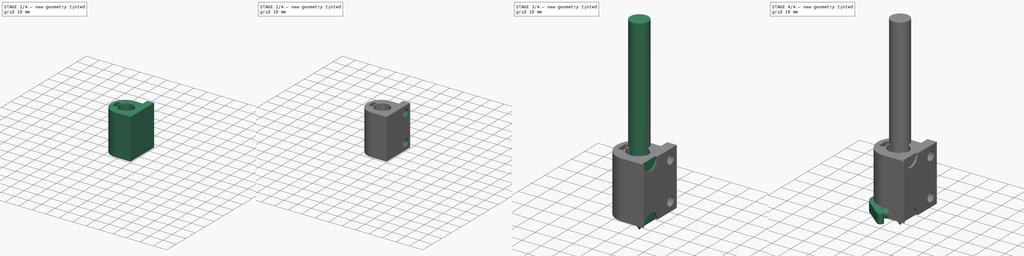
[diagram: build sequence overview — one tinted view per stage of 4, left to right]
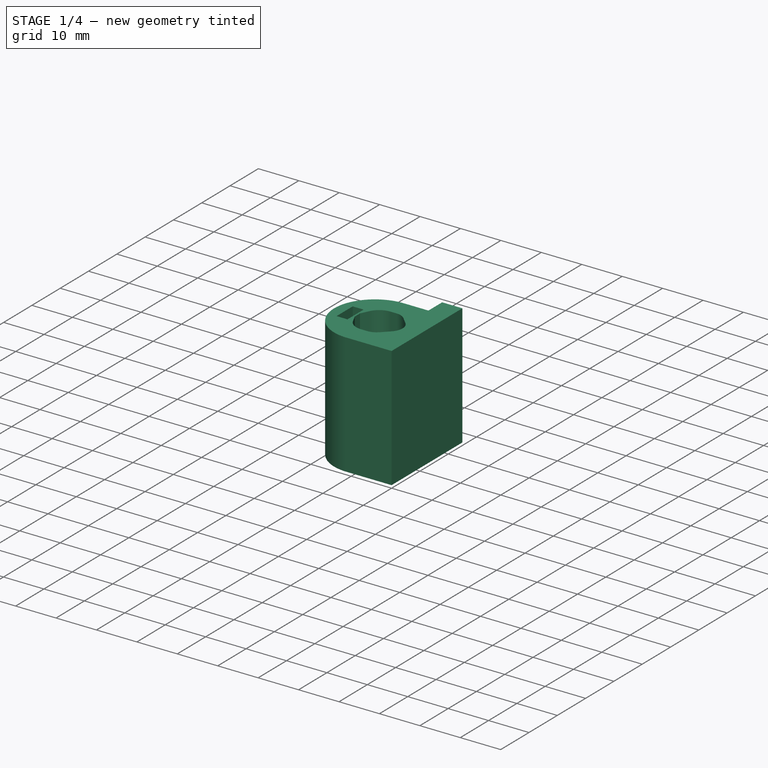
[diagram: stage 1 of 4 — iso view after this stage's code; geometry added in this stage tinted green]
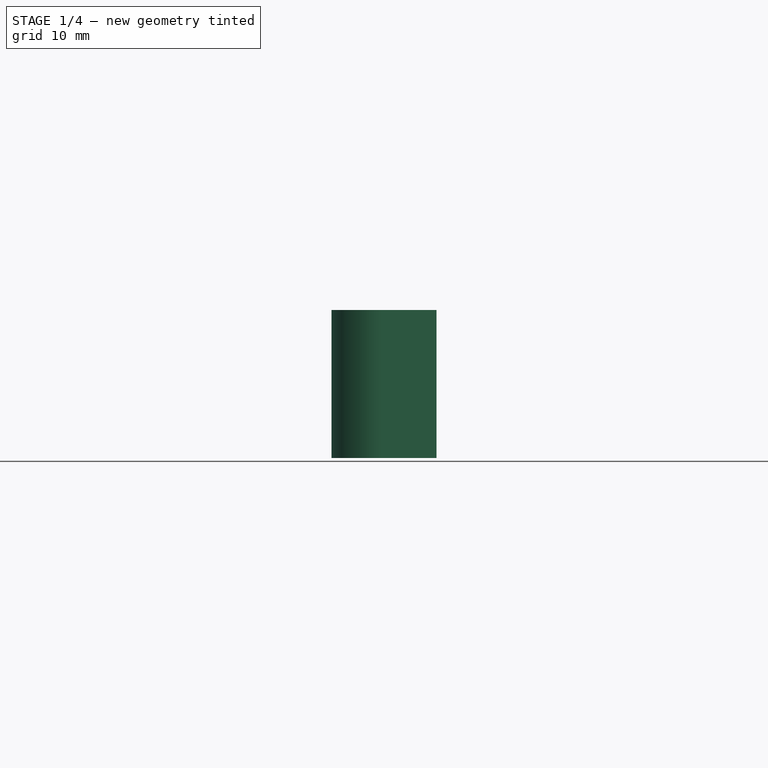
[diagram: stage 1 of 4 — front view after this stage's code; geometry added in this stage tinted green]
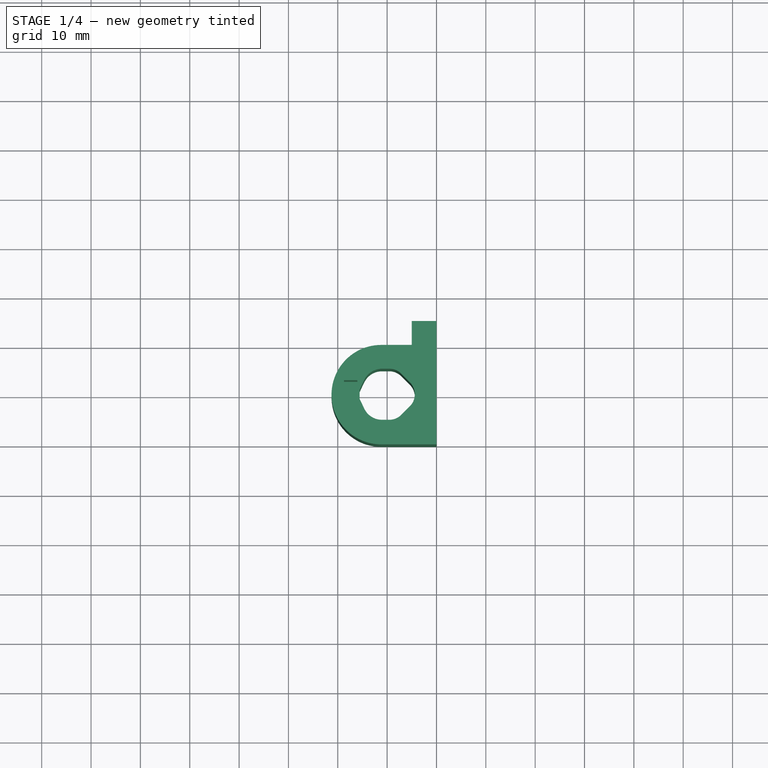
[diagram: stage 1 of 4 — top view after this stage's code; geometry added in this stage tinted green]
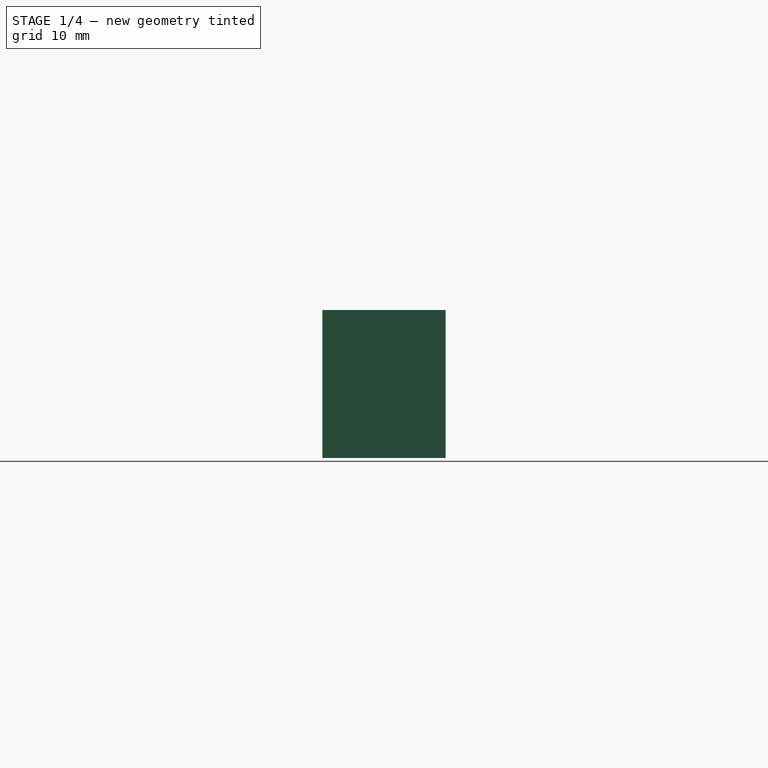
[diagram: stage 1 of 4 — right view after this stage's code; geometry added in this stage tinted green]
FCSTD DOCUMENT  (FreeCAD 0.21R33694 (Git))
Label: mount_for_pen_simpler
License: All rights reserved
LicenseURL: https://en.wikipedia.org/wiki/All_rights_reserved
objects: Sketcher::SketchObject×9, PartDesign::Pad×5, PartDesign::Body×3, PartDesign::Pocket×3, PartDesign::Hole×1
note: 30 computed .brp shape members not serialized (recipe doc carries the construction recipe); baked Part::Feature solids carry a one-line shape summary decoded from their .brp

FEATURE [Sketcher::SketchObject] Sketch  label="Sketch_de_base"
  FullyConstrained = false
  MapMode = 5
  Support = -> [XY_Plane]
  sketch-geometry (19):
    g0: LineSegment StartX=-5 StartY=25 StartZ=0 EndX=0 EndY=25 EndZ=0
    g1: LineSegment StartX=0 StartY=25 StartZ=0 EndX=0 EndY=0 EndZ=0
    g2: LineSegment StartX=0 StartY=0 StartZ=0 EndX=-11.1926 EndY=0 EndZ=0
    g3: ArcOfCircle CenterX=-11.1926 CenterY=10.0796 CenterZ=0 NormalX=0 NormalY=0 NormalZ=1 AngleXU=0 Radius=10.0796 StartAngle=1.5708 EndAngle=4.71239
    g4: LineSegment StartX=-11.1926 StartY=20.1591 StartZ=0 EndX=-5 EndY=20.1591 EndZ=0
    g5: LineSegment StartX=-5 StartY=20.1591 StartZ=0 EndX=-5 EndY=25 EndZ=0
    g6: LineSegment StartX=-7.14502 StartY=5.98354 StartZ=0 EndX=-5.39716 EndY=7.7314 EndZ=0
    g7: LineSegment StartX=-34.6802 StartY=10.1591 StartZ=0 EndX=10.4671 EndY=10.1591 EndZ=0
    g8: LineSegment StartX=-5.39716 StartY=12.5869 StartZ=0 EndX=-7.14502 EndY=14.3347 EndZ=0
    g9: LineSegment StartX=-11.0548 StartY=15.3297 StartZ=0 EndX=-9.54715 EndY=15.3297 EndZ=0
    g10: LineSegment StartX=-11.0548 StartY=4.98854 StartZ=0 EndX=-9.54715 EndY=4.98854 EndZ=0
    g11: LineSegment StartX=-14.6231 StartY=13.0895 StartZ=0 EndX=-15.5825 EndY=11.1011 EndZ=0
    g12: LineSegment StartX=-15.5825 StartY=11.1011 StartZ=0 EndX=-15.5825 EndY=9.21714 EndZ=0
    g13: LineSegment StartX=-15.5825 StartY=9.21714 StartZ=0 EndX=-14.6231 EndY=7.22879 EndZ=0
    g14: ArcOfCircle CenterX=-7.82489 CenterY=10.1591 CenterZ=0 NormalX=0 NormalY=0 NormalZ=1 AngleXU=0 Radius=3.43333 StartAngle=5.49779 EndAngle=7.06858
    g15: ArcOfCircle CenterX=-9.54715 CenterY=8.38566 CenterZ=0 NormalX=0 NormalY=0 NormalZ=1 AngleXU=0 Radius=3.39712 StartAngle=4.71239 EndAngle=5.49779
    g16: ArcOfCircle CenterX=-9.54715 CenterY=11.9326 CenterZ=0 NormalX=0 NormalY=0 NormalZ=1 AngleXU=0 Radius=3.39712 StartAngle=0.785398 EndAngle=1.5708
    g17: ArcOfCircle CenterX=-11.0548 CenterY=11.3677 CenterZ=0 NormalX=0 NormalY=0 NormalZ=1 AngleXU=0 Radius=3.962 StartAngle=1.5708 EndAngle=2.69204
    g18: ArcOfCircle CenterX=-11.0548 CenterY=8.95054 CenterZ=0 NormalX=0 NormalY=0 NormalZ=1 AngleXU=0 Radius=3.962 StartAngle=3.59115 EndAngle=4.71239
  constraints (39):
    c: Horizontal(g0)
    c: Coincident(g0,g1)
    c: Vertical(g1)
    c: Coincident(g1,g2)
    c: Horizontal(g2)
    c: Coincident(g5,g0)
    c: Coincident(g1,g-1)
    c: DistanceY(g1,g0) = 25
    c: Coincident(g3,g2)
    c: Coincident(g4,g5)
    c: Vertical(g5)
    c: Horizontal(g4)
    c: Coincident(g3,g4)
    c: DistanceX(g0,g0) = 5
    c: DistanceY(g1,g4) = 20.1591  'largeur_support'
    c: Angle(g6) = 0.785398
    c: Horizontal(g7)
    c: DistanceY(g7,g4) = 10
    c: Vertical(g3,g2)
    c: Angle(g3) = 3.14159
    c: Horizontal(g10)
    c: Coincident(g12,g11)
    c: Vertical(g12)
    c: Coincident(g13,g12)
    c: Tangent(g8,g14) = -1.5708
    c: Tangent(g6,g14) = -1.5708
    c: Tangent(g6,g15) = -1.5708
    c: Tangent(g10,g15) = -1.5708
    c: Tangent(g8,g16) = -1.5708
    c: Tangent(g9,g16) = 1.5708
    c: Tangent(g9,g17) = 1.5708
    c: Tangent(g11,g17) = -1.5708
    c: Tangent(g13,g18) = -1.5708
    c: Symmetric(g6,g8,g7)
    c: Vertical(g13,g11)
    c: Symmetric(g16,g15,g7)
    c: Symmetric(g17,g18,g7)
    c: Symmetric(g9,g10,g7)
    c: Coincident(g10,g18)
FEATURE [PartDesign::Pad] Pad
  Direction = (0,0,1)
  Length = 30
  Length2 = 10
  Profile = -> Sketch
  ReferenceAxis = -> Sketch [N_Axis]
  Type = 0
FEATURE [PartDesign::Body] Body002  label="crayon"
  Group = -> [Sketch006,Pad004,Sketch007,Pad005]
  Origin = -> Origin002
  Placement = pos=(3.4,-5.7,-19) rot=(0,0,1;0rad)
  Tip = -> Pad005
FEATURE [Sketcher::SketchObject] Sketch008  label="trou_ecrou"
  ExternalGeometry = -> [Pad]
  FullyConstrained = false
  MapMode = 5
  Placement = pos=(0,0,30) rot=(0,0,1;0rad)
  Support = -> [Pad]
  sketch-geometry (5):
    g0: GeomPoint X=-11.0548 Y=10.1591 Z=0
    g1: LineSegment StartX=-18.7322 StartY=13.0091 StartZ=0 EndX=-16.0322 EndY=13.0091 EndZ=0
    g2: LineSegment StartX=-16.0322 StartY=13.0091 StartZ=0 EndX=-16.0322 EndY=7.30913 EndZ=0
    g3: LineSegment StartX=-16.0322 StartY=7.30913 StartZ=0 EndX=-18.7322 EndY=7.30913 EndZ=0
    g4: LineSegment StartX=-18.7322 StartY=7.30913 StartZ=0 EndX=-18.7322 EndY=13.0091 EndZ=0
  constraints (12):
    c: Symmetric(g-3,g-4,g0)
    c: Coincident(g1,g2)
    c: Coincident(g2,g3)
    c: Coincident(g3,g4)
    c: Coincident(g4,g1)
    c: Horizontal(g1)
    c: Horizontal(g3)
    c: Vertical(g2)
    c: Vertical(g4)
    c: DistanceY(g0,g1) = 2.85
    c: DistanceY(g2,g1) = 5.7
    c: DistanceX(g1,g1) = 2.7
FEATURE [PartDesign::Pocket] Pocket002  label="trou_ecrou001"
  BaseFeature = -> Pad
  Direction = (0,0,-1)
  Length = 17.5
  Length2 = 5
  Profile = -> Sketch008
  ReferenceAxis = -> Sketch008 [N_Axis]
  Type = 0
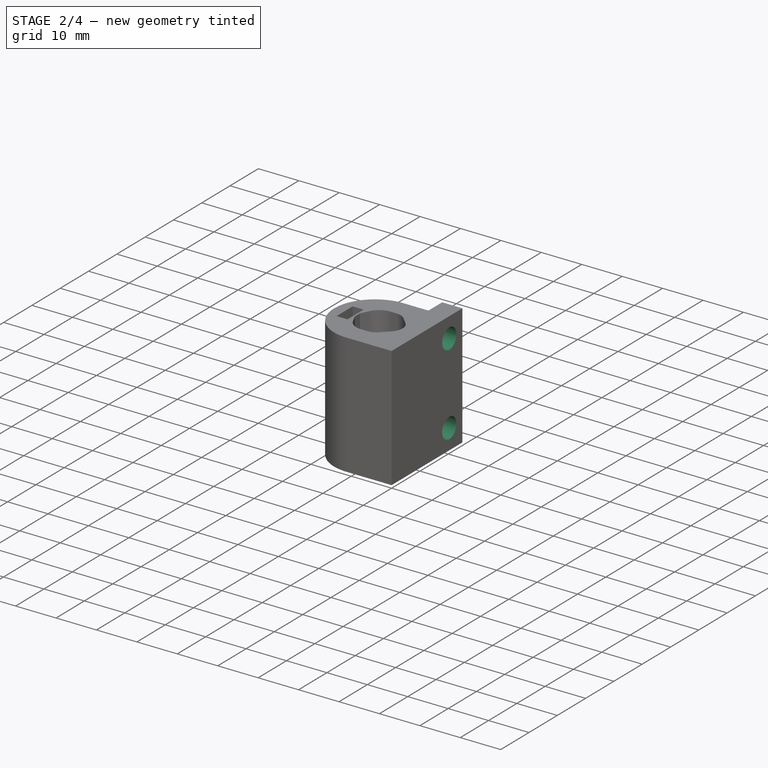
[diagram: stage 2 of 4 — iso view after this stage's code; geometry added in this stage tinted green]
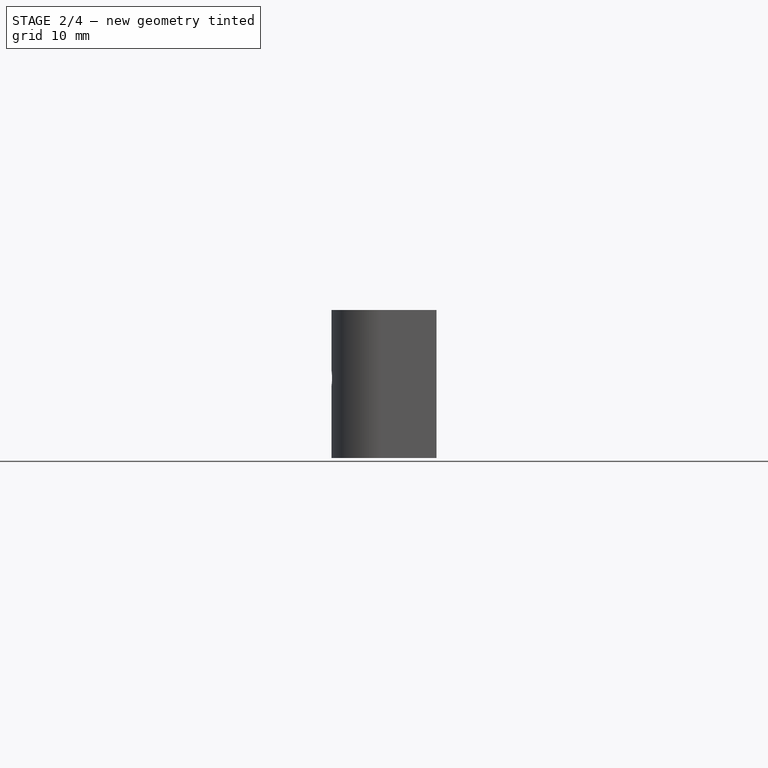
[diagram: stage 2 of 4 — front view after this stage's code; geometry added in this stage tinted green]
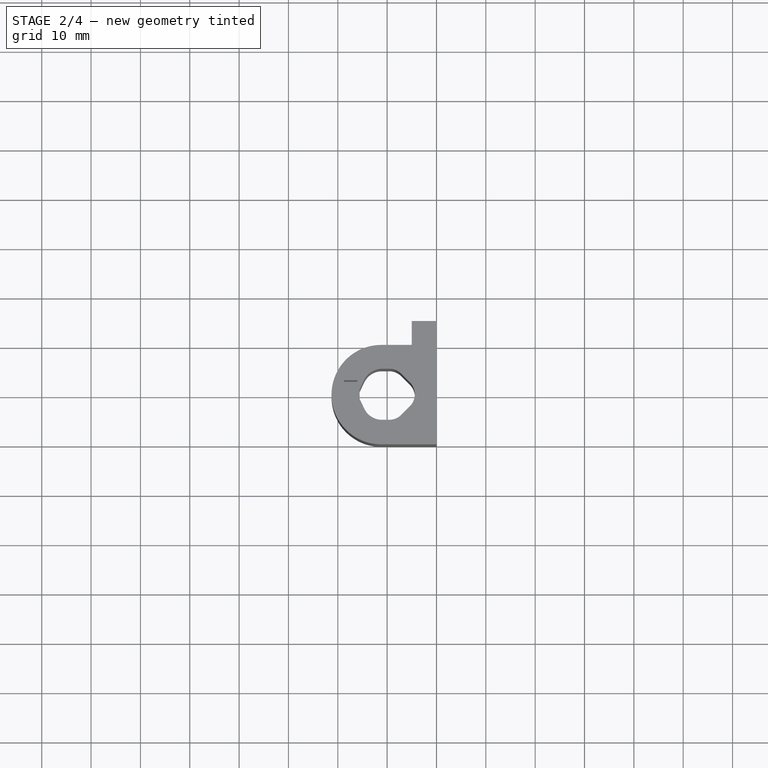
[diagram: stage 2 of 4 — top view after this stage's code; geometry added in this stage tinted green]
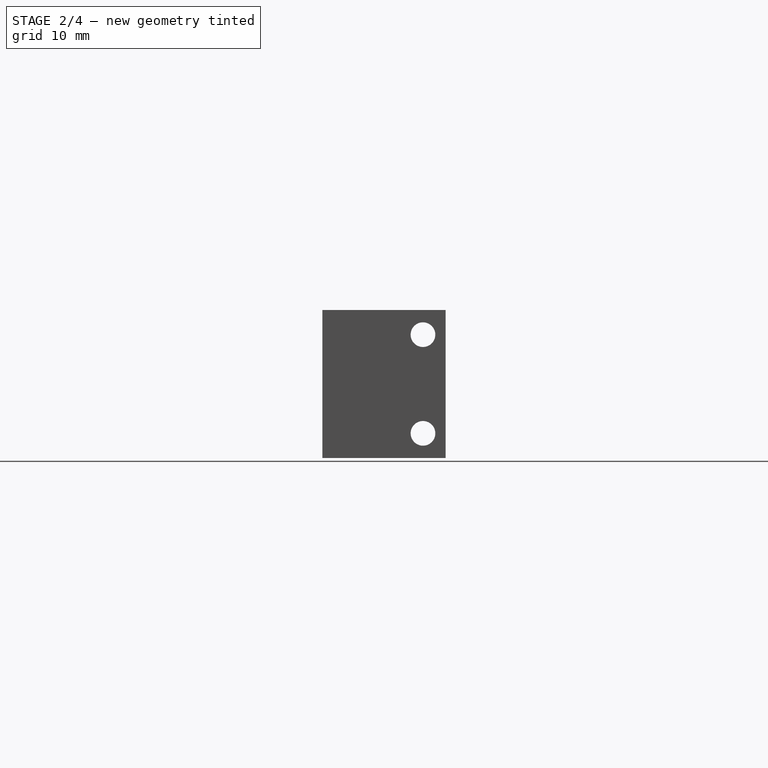
[diagram: stage 2 of 4 — right view after this stage's code; geometry added in this stage tinted green]
FEATURE [Sketcher::SketchObject] Sketch010  label="Sketch_passage_boulon"
  AttachmentOffset = pos=(0,0,-22) rot=(0,0,1;0rad)
  FullyConstrained = false
  MapMode = 5
  Placement = pos=(-22,0,0) rot=(0.57735,0.57735,0.57735;2.0944rad)
  Support = -> [Pocket002]
  sketch-geometry (1):
    g0: Circle CenterX=10.1967 CenterY=16.156 CenterZ=0 NormalX=0 NormalY=0 NormalZ=1 AngleXU=0 Radius=1.55838
FEATURE [PartDesign::Pocket] Pocket  label="trou_passage_boulon"
  BaseFeature = -> Pocket002
  Direction = (-1,0,0)
  Length = 16
  Length2 = 5
  Profile = -> Sketch010
  ReferenceAxis = -> Sketch010 [N_Axis]
  Reversed = true
  Type = 0
FEATURE [Sketcher::SketchObject] Sketch011  label="fixation_sur_metal"
  AttachmentOffset = pos=(0,0,-20) rot=(0,0,1;0rad)
  ExternalGeometry = -> [Pocket]
  FullyConstrained = false
  MapMode = 5
  Placement = pos=(-20,0,0) rot=(0.57735,0.57735,0.57735;2.0944rad)
  Support = -> [Pocket]
  sketch-geometry (2):
    g0: Circle CenterX=20.3994 CenterY=25 CenterZ=0 NormalX=0 NormalY=0 NormalZ=1 AngleXU=0 Radius=2.26595
    g1: Circle CenterX=20.3994 CenterY=5 CenterZ=0 NormalX=0 NormalY=0 NormalZ=1 AngleXU=0 Radius=1.73932
  constraints (4):
    c: Vertical(g0,g1)
    c: DistanceY(g1,g0) = 20
    c: DistanceY(g-1,g-3) = 30  'ext'
    c: DistanceY(g-1,g1) = 5
FEATURE [PartDesign::Hole] Hole
  BaseFeature = -> Pocket
  CustomThreadClearance = 0
  Depth = 89.8277
  DepthType = 0
  Diameter = 5
  DrillForDepth = false
  DrillPoint = 1
  DrillPointAngle = 118
  HoleCutCountersinkAngle = 140
  HoleCutCustomValues = true
  HoleCutDepth = 15
  HoleCutDiameter = 10
  HoleCutType = 3
  ModelThread = false
  Profile = -> Sketch011
  Reversed = true
  Tapered = false
  TaperedAngle = 90
  ThreadClass = 0
  ThreadDepth = 89.8277
  ThreadDepthType = 0
  ThreadDirection = 0
  ThreadFit = 0
  ThreadSize = 0
  ThreadType = 0
  Threaded = false
  UseCustomThreadClearance = false
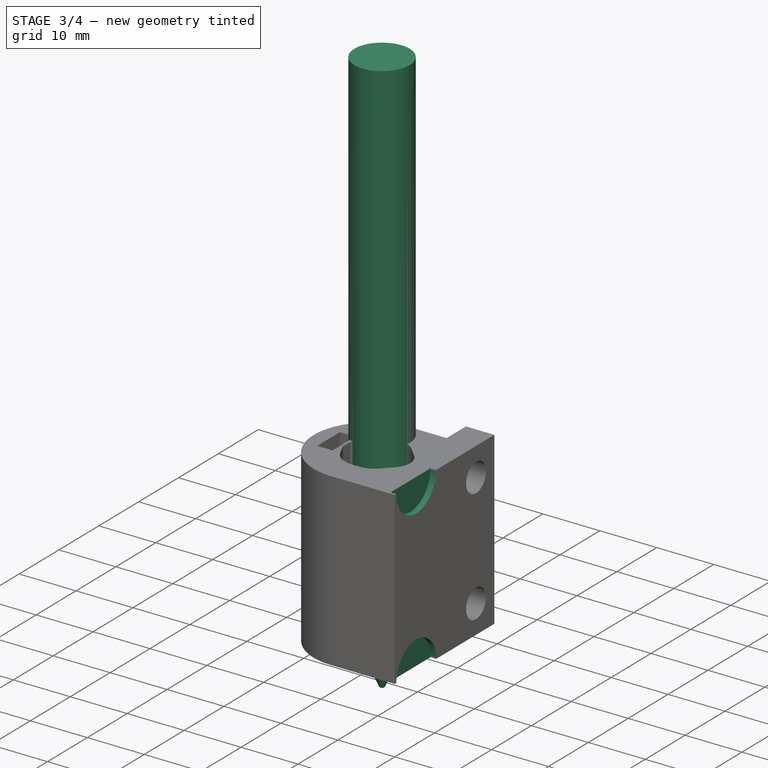
[diagram: stage 3 of 4 — iso view after this stage's code; geometry added in this stage tinted green]
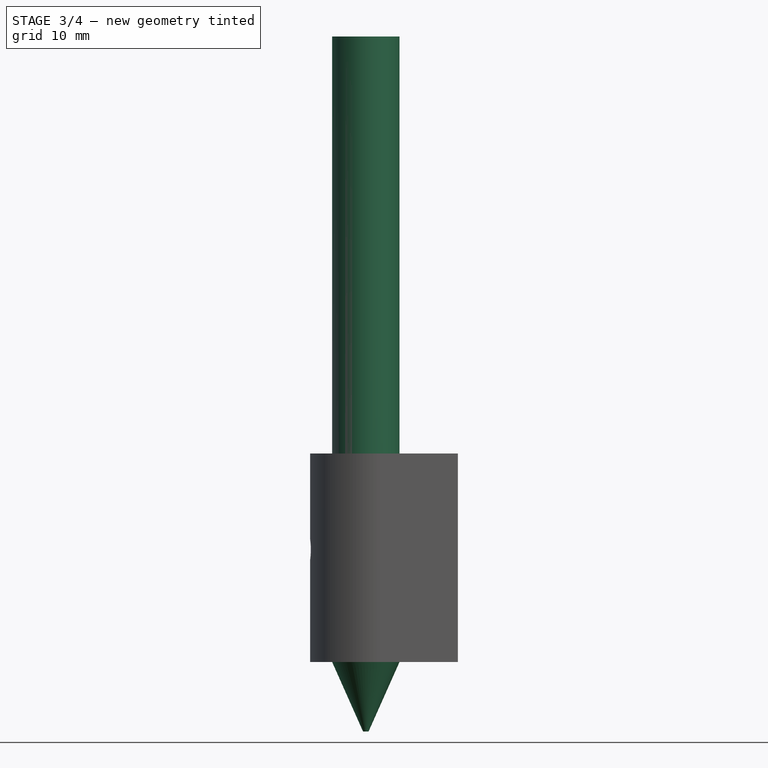
[diagram: stage 3 of 4 — front view after this stage's code; geometry added in this stage tinted green]
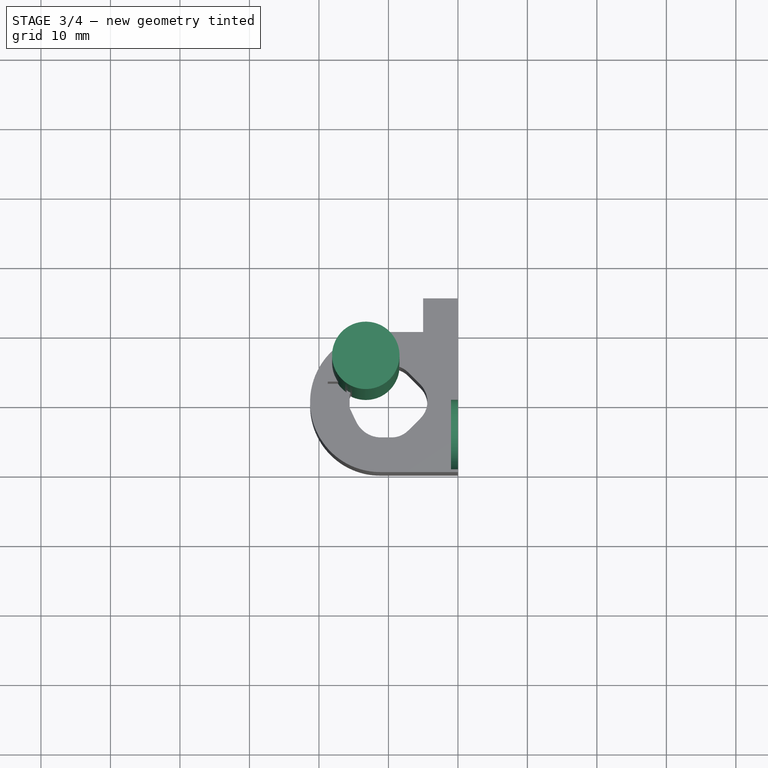
[diagram: stage 3 of 4 — top view after this stage's code; geometry added in this stage tinted green]
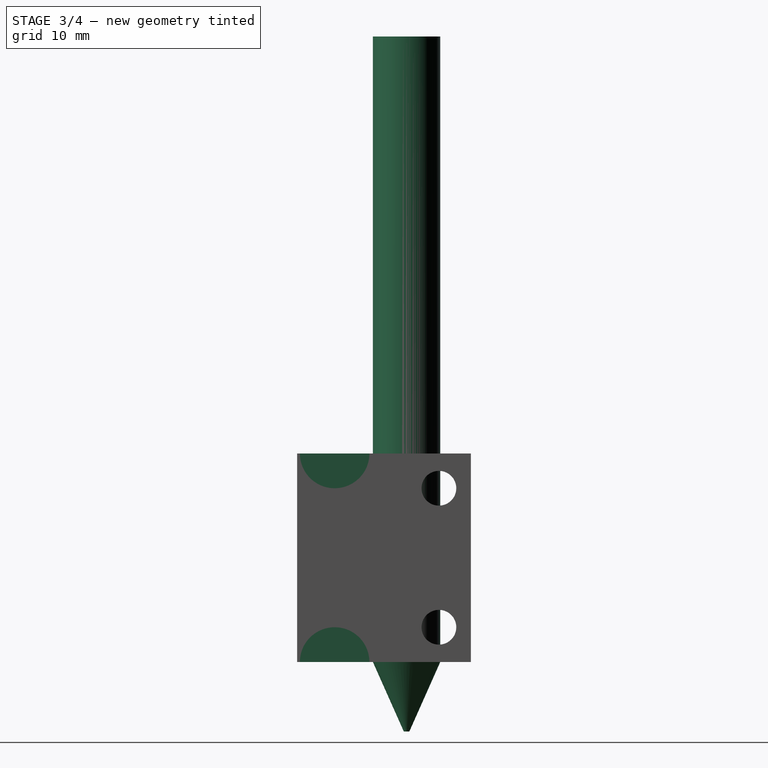
[diagram: stage 3 of 4 — right view after this stage's code; geometry added in this stage tinted green]
FEATURE [PartDesign::Body] Body001  label="presseur"
  Group = -> [Sketch002,Pad002,Sketch003,Pad003]
  Origin = -> Origin001
  Placement = pos=(0,0,11) rot=(0,0,1;0rad)
  Tip = -> Pad003
FEATURE [Sketcher::SketchObject] Sketch006
  FullyConstrained = false
  MapMode = 5
  Support = -> [XY_Plane002]
  sketch-geometry (1):
    g0: Circle CenterX=-13.2562 CenterY=15.7491 CenterZ=0 NormalX=0 NormalY=0 NormalZ=1 AngleXU=0 Radius=4.85
  constraints (1):
    c: Diameter(g0) = 9.7
FEATURE [PartDesign::Pad] Pad004
  Direction = (0,0,1)
  Length = 90
  Length2 = 10
  Profile = -> Sketch006
  ReferenceAxis = -> Sketch006 [N_Axis]
  Type = 0
FEATURE [Sketcher::SketchObject] Sketch007
  ExternalGeometry = -> [Pad004]
  FullyConstrained = true
  MapMode = 5
  Placement = pos=(0,0,0) rot=(1,0,0;3.14159rad)
  Support = -> [Pad004]
  sketch-geometry (1):
    g0: Circle CenterX=-13.2562 CenterY=-15.7491 CenterZ=0 NormalX=0 NormalY=0 NormalZ=1 AngleXU=0 Radius=4.85
  constraints (3):
    c: Coincident(g0,g-3)
    c: Diameter(g-3) = 9.7
    c: Diameter(g0) = 9.7
FEATURE [PartDesign::Pad] Pad005
  BaseFeature = -> Pad004
  Direction = (0,0,-1)
  Length = 10
  Length2 = 10
  Profile = -> Sketch007
  ReferenceAxis = -> Sketch007 [N_Axis]
  TaperAngle = -24
  Type = 0
FEATURE [Sketcher::SketchObject] Sketch012  label="trous_peu_profonds"
  ExternalGeometry = -> [Sketch011]
  FullyConstrained = true
  MapMode = 5
  Placement = pos=(0,0,0) rot=(0.57735,0.57735,0.57735;2.0944rad)
  Support = -> [Pocket002]
  sketch-geometry (2):
    g0: Circle CenterX=5.39942 CenterY=30 CenterZ=0 NormalX=0 NormalY=0 NormalZ=1 AngleXU=0 Radius=5
    g1: Circle CenterX=5.39942 CenterY=0 CenterZ=0 NormalX=0 NormalY=0 NormalZ=1 AngleXU=0 Radius=5
  constraints (6):
    c: DistanceY(g1,g0) = 30
    c: DistanceY(g-1,g1) = 0
    c: Equal(g0,g1)
    c: Diameter(g0) = 10
    c: DistanceX(g0,g-3) = 15
    c: Vertical(g1,g0)
FEATURE [PartDesign::Pocket] Pocket003  label="trous_peu_profonds001"
  BaseFeature = -> Hole
  Direction = (-1,0,0)
  Length = 1
  Length2 = 5
  Profile = -> Sketch012
  ReferenceAxis = -> Sketch012 [N_Axis]
  Type = 0
FEATURE [PartDesign::Body] Body  label="corps principal"
  Group = -> [Sketch,Pad,Sketch008,Pocket002,Sketch010,Pocket,Sketch011,Hole,Sketch012,Pocket003]
  Origin = -> Origin
  Tip = -> Pocket003
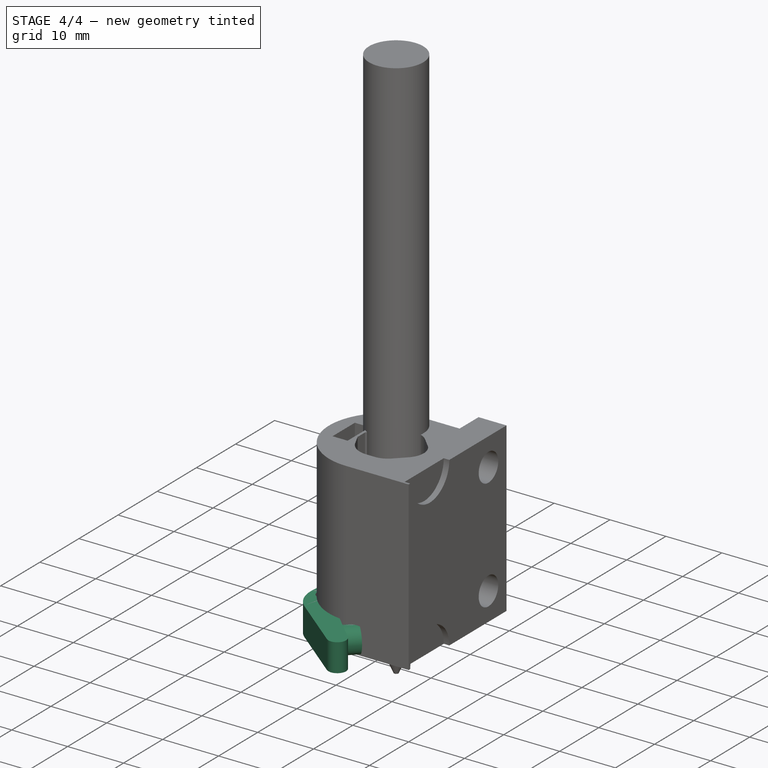
[diagram: stage 4 of 4 — iso view after this stage's code; geometry added in this stage tinted green]
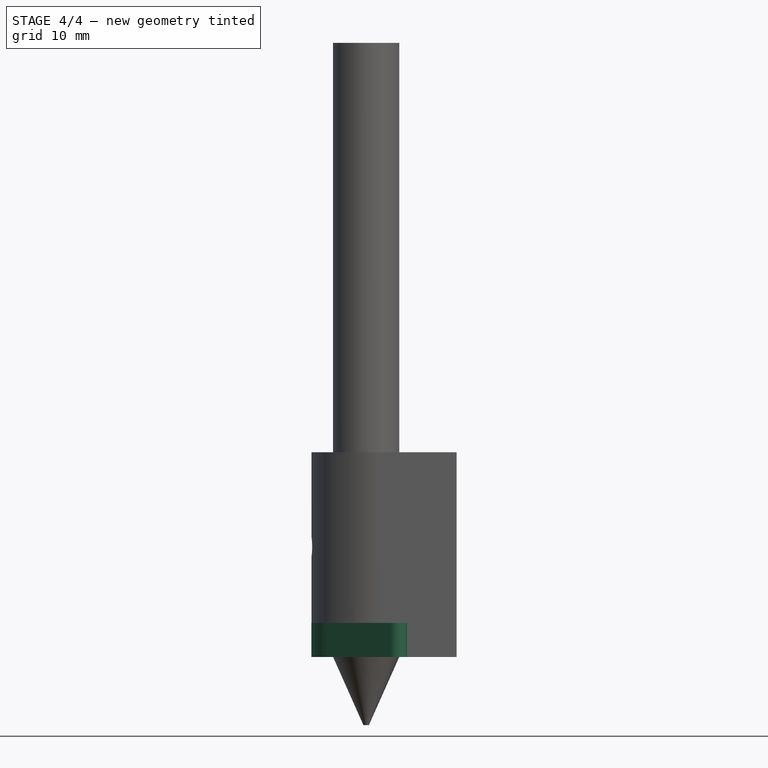
[diagram: stage 4 of 4 — front view after this stage's code; geometry added in this stage tinted green]
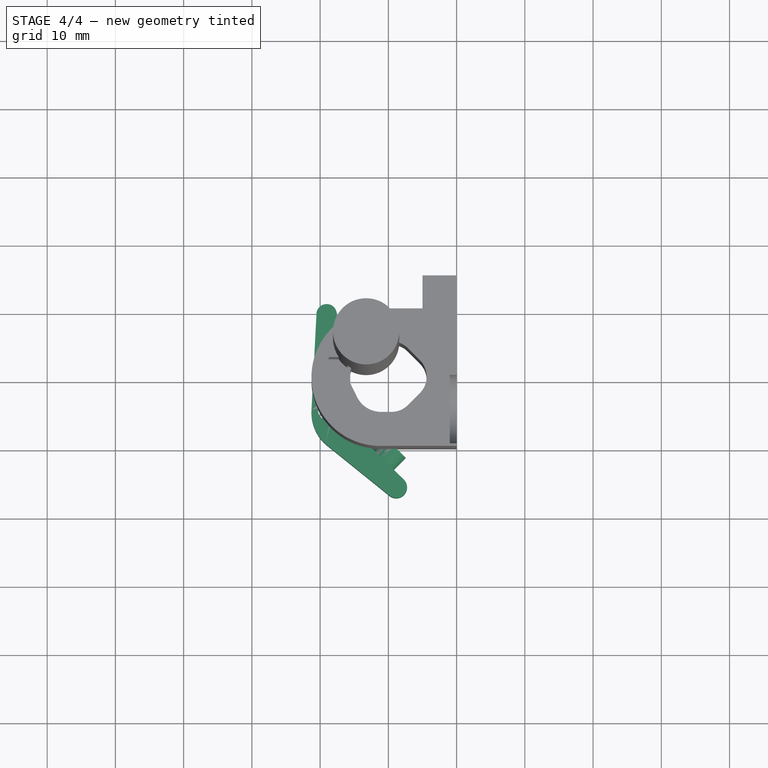
[diagram: stage 4 of 4 — top view after this stage's code; geometry added in this stage tinted green]
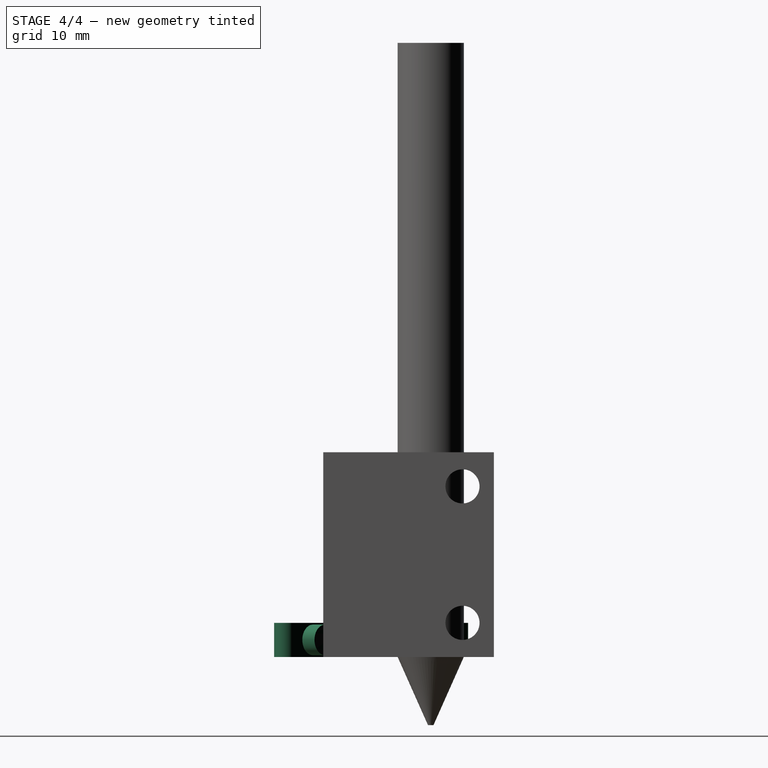
[diagram: stage 4 of 4 — right view after this stage's code; geometry added in this stage tinted green]
FEATURE [Sketcher::SketchObject] Sketch002
  FullyConstrained = false
  MapMode = 5
  Support = -> [XY_Plane001]
  sketch-geometry (9):
    g0: ArcOfCircle CenterX=-19.0458 CenterY=19.7296 CenterZ=0 NormalX=0 NormalY=0 NormalZ=1 AngleXU=0 Radius=1.5 StartAngle=0.0814695 EndAngle=2.97942
    g1: LineSegment StartX=-16.3631 StartY=5.30596 StartZ=0 EndX=-17.5507 EndY=19.8517 EndZ=0
    g2: ArcOfCircle CenterX=-8.83622 CenterY=-5.61934 CenterZ=0 NormalX=0 NormalY=0 NormalZ=1 AngleXU=0 Radius=1.58011 StartAngle=4.03387 EndAngle=7.07867
    g3: LineSegment StartX=-19.2323 StartY=0.732473 StartZ=0 EndX=-9.82796 EndY=-6.84947 EndZ=0
    g4: LineSegment StartX=-7.73023 StartY=-4.49083 StartZ=0 EndX=-15.2036 EndY=2.83336 EndZ=0
    g5: Circle CenterX=-18.809 CenterY=5.69478 CenterZ=0 NormalX=0 NormalY=0 NormalZ=1 AngleXU=0 Radius=1.5
    g6: LineSegment StartX=-20.5261 StartY=19.9718 StartZ=0 EndX=-21.2697 EndY=5.69468 EndZ=0
    g7: ArcOfCircle CenterX=-15.0031 CenterY=5.36827 CenterZ=0 NormalX=0 NormalY=0 NormalZ=1 AngleXU=0 Radius=6.27509 StartAngle=3.08955 EndAngle=3.97283
    g8: ArcOfCircle CenterX=-12.4688 CenterY=5.62393 CenterZ=0 NormalX=0 NormalY=0 NormalZ=1 AngleXU=0 Radius=3.90727 StartAngle=3.22306 EndAngle=3.93707
  constraints (10):
    c: Tangent(g1,g0) = -1.5708
    c: Diameter(g0) = 3
    c: Tangent(g3,g2) = -1.5708
    c: Tangent(g2,g4) = -1.5708
    c: Tangent(g6,g7) = -1.5708
    c: Tangent(g1,g8) = 1.5708
    c: Tangent(g4,g8) = 1.5708
    c: Coincident(g0,g6)
    c: Coincident(g7,g3)
    c: Radius(g5) = 1.5
FEATURE [PartDesign::Pad] Pad002
  Direction = (0,0,1)
  Length = 5
  Length2 = 10
  Profile = -> Sketch002
  ReferenceAxis = -> Sketch002 [N_Axis]
  Type = 0
FEATURE [Sketcher::SketchObject] Sketch003
  FullyConstrained = false
  MapMode = 5
  Placement = pos=(-6.03213,-6.15502,0) rot=(0.277395,0.679357,0.679357;2.60041rad)
  Support = -> [Pad002]
  sketch-geometry (1):
    g0: Circle CenterX=6.65872 CenterY=2.5 CenterZ=0 NormalX=0 NormalY=0 NormalZ=1 AngleXU=0 Radius=2.25
  constraints (2):
    c: DistanceY(g-1,g0) = 2.5
    c: Diameter(g0) = 4.5
FEATURE [PartDesign::Pad] Pad003
  BaseFeature = -> Pad002
  Direction = (0.699941,0.7142,0)
  Length = 2.5
  Length2 = 10
  Profile = -> Sketch003
  ReferenceAxis = -> Sketch003 [N_Axis]
  Type = 0
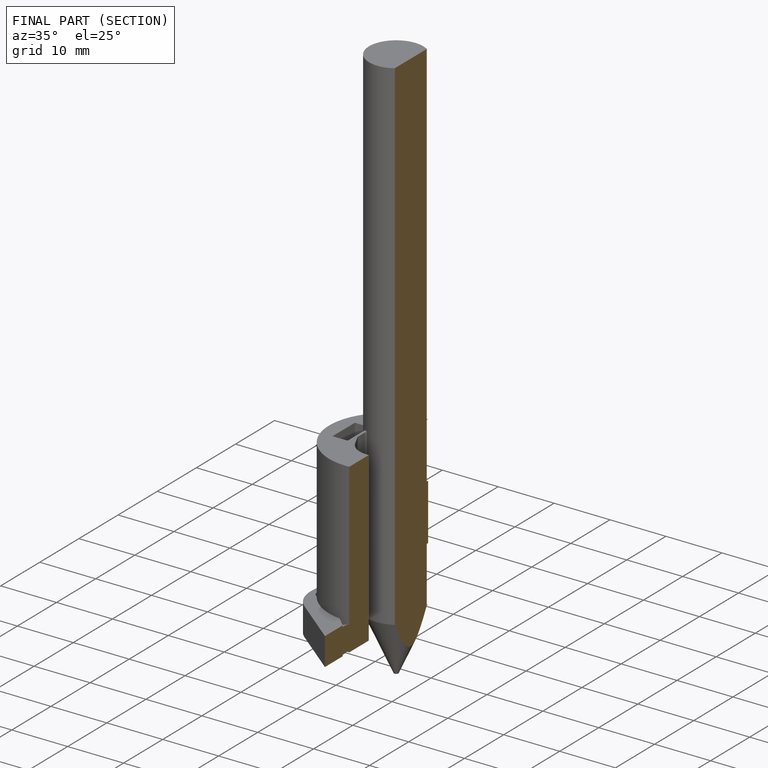
[diagram: finished part — half-section view (interior)]
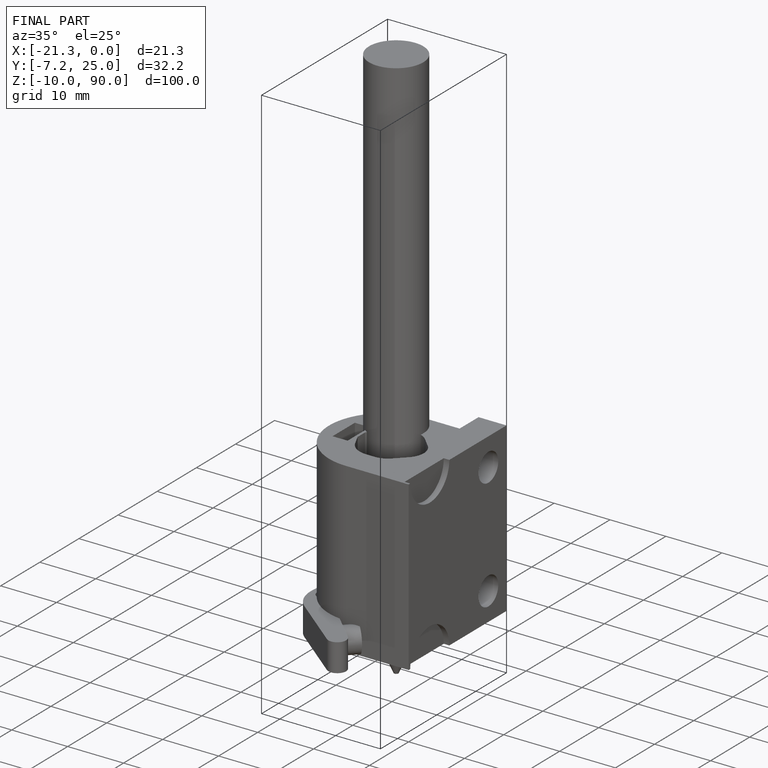
[diagram: finished part — iso view with bounding-box wireframe]
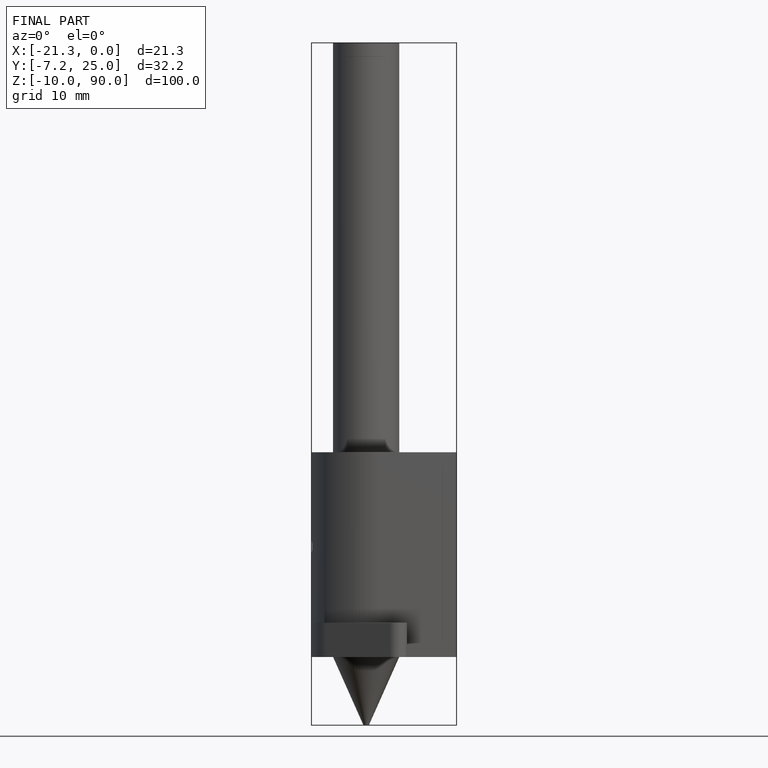
[diagram: finished part — front view with bounding-box wireframe]
